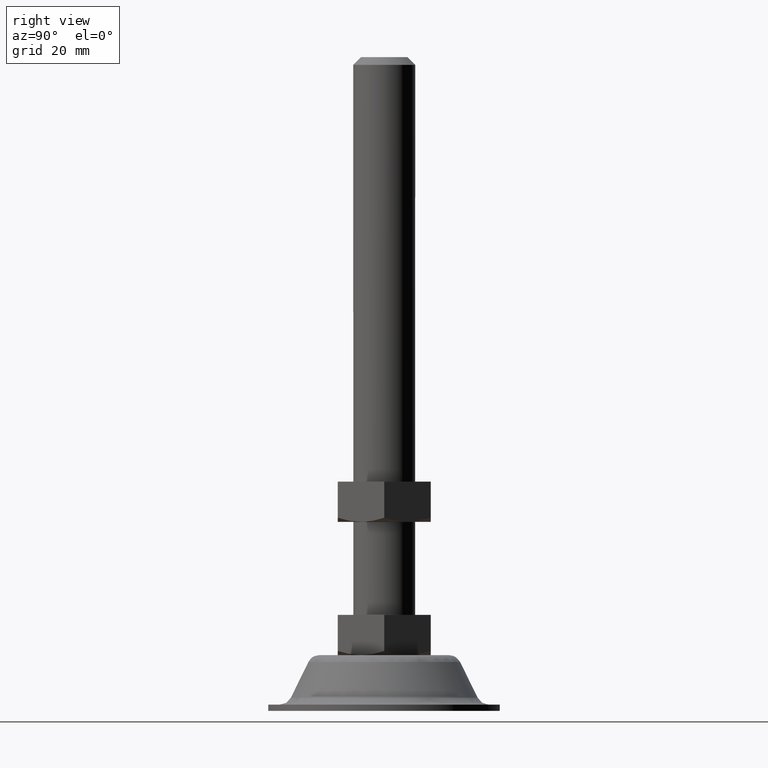
[diagram: clean part render]
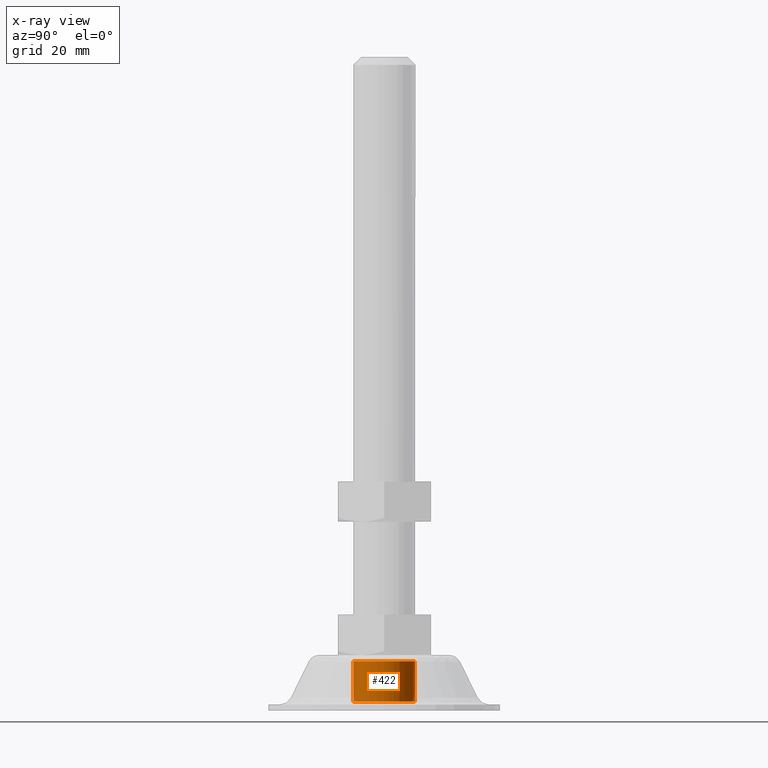
[diagram: x-ray — body ghosted, one internal face saturated and labeled with its STEP entity id]
A machine part, right view, then the same camera in x-ray: the body is ghosted and one INTERNAL B-rep face — a face not visible from any outside direction — is saturated and labeled: STEP entity #422.
In plain terms, the highlighted face is a freeform B-spline surface patch.
Its self-contained STEP definition (entity closure, byte-faithful):
#324=CARTESIAN_POINT('',(-0.784590957278455,-9.969173337331275,74.325000000000017));
#325=CARTESIAN_POINT('',(-10.753764294609731,-9.184582380052820,74.325000000000017));
#326=CARTESIAN_POINT('',(-9.969173337331275,0.784590957278455,74.325000000000017));
#327=CARTESIAN_POINT('',(-9.184582380052820,10.753764294609731,74.325000000000017));
#328=CARTESIAN_POINT('',(0.784590957278455,9.969173337331275,74.325000000000017));
#329=CARTESIAN_POINT('',(-0.784590957278455,-9.969173337331275,60.666874999999990));
#330=CARTESIAN_POINT('',(-10.753764294609731,-9.184582380052820,60.666874999999990));
#331=CARTESIAN_POINT('',(-9.969173337331275,0.784590957278455,60.666874999999990));
#332=CARTESIAN_POINT('',(-9.184582380052820,10.753764294609731,60.666874999999990));
#333=CARTESIAN_POINT('',(0.784590957278455,9.969173337331275,60.666874999999990));
#341=(BOUNDED_SURFACE()B_SPLINE_SURFACE(2,1,((#324,#329),(#325,#330),(#326,#331),(#327,#332),(#328,#333)),.UNSPECIFIED.,.F.,.F.,.U.)B_SPLINE_SURFACE_WITH_KNOTS((3,2,3),(2,2),(0.0,16.568542494923800,33.137084989847587),(0.0,13.658125000000030),.UNSPECIFIED.)GEOMETRIC_REPRESENTATION_ITEM()RATIONAL_B_SPLINE_SURFACE(((1.0,1.0),(0.707106781186548,0.707106781186548),(1.0,1.0),(0.707106781186548,0.707106781186548),(1.0,1.0)))REPRESENTATION_ITEM('')SURFACE());
#342=CARTESIAN_POINT('',(-10.0,0.0,74.0));
#343=VERTEX_POINT('',#342);
#344=CARTESIAN_POINT('',(-0.784590957487143,-9.969173337314853,74.0));
#345=VERTEX_POINT('',#344);
#346=CARTESIAN_POINT('',(-10.0,0.0,74.0));
#347=CARTESIAN_POINT('',(-10.000000000000002,-9.243904916193854,74.000000000000014));
#348=CARTESIAN_POINT('',(-0.784590957487143,-9.969173337314853,74.0));
#356=(BOUNDED_CURVE()B_SPLINE_CURVE(2,(#346,#347,#348),.UNSPECIFIED.,.F.,.U.)B_SPLINE_CURVE_WITH_KNOTS((3,3),(0.0,0.236331300625590),.UNSPECIFIED.)CURVE()GEOMETRIC_REPRESENTATION_ITEM()RATIONAL_B_SPLINE_CURVE((1.0,0.723120658613605,0.969723356156837))REPRESENTATION_ITEM(''));
#357=EDGE_CURVE('',#343,#345,#356,.T.);
#358=ORIENTED_EDGE('',*,*,#357,.T.);
#359=CARTESIAN_POINT('',(-0.784590957487142,-9.969173337314853,61.0));
#360=VERTEX_POINT('',#359);
#361=CARTESIAN_POINT('',(-0.784590957487143,-9.969173337314853,74.0));
#362=CARTESIAN_POINT('',(-0.784590957487142,-9.969173337314853,61.0));
#363=QUASI_UNIFORM_CURVE('',1,(#361,#362),.UNSPECIFIED.,.F.,.U.);
#364=EDGE_CURVE('',#345,#360,#363,.T.);
#365=ORIENTED_EDGE('',*,*,#364,.T.);
#366=CARTESIAN_POINT('',(-10.0,0.0,61.0));
#367=VERTEX_POINT('',#366);
#368=CARTESIAN_POINT('',(-10.0,0.0,61.0));
#369=CARTESIAN_POINT('',(-10.000000000000002,-9.243904916193854,60.999999999999993));
#370=CARTESIAN_POINT('',(-0.784590957487142,-9.969173337314853,61.0));
#378=(BOUNDED_CURVE()B_SPLINE_CURVE(2,(#368,#369,#370),.UNSPECIFIED.,.F.,.U.)B_SPLINE_CURVE_WITH_KNOTS((3,3),(0.0,0.236331300625590),.UNSPECIFIED.)CURVE()GEOMETRIC_REPRESENTATION_ITEM()RATIONAL_B_SPLINE_CURVE((1.0,0.723120658613605,0.969723356156837))REPRESENTATION_ITEM(''));
#379=EDGE_CURVE('',#367,#360,#378,.T.);
#380=ORIENTED_EDGE('',*,*,#379,.F.);
#381=CARTESIAN_POINT('',(0.784590957487143,9.969173337314853,61.0));
#382=VERTEX_POINT('',#381);
#383=CARTESIAN_POINT('',(0.784590957487143,9.969173337314853,60.999999999999993));
#384=CARTESIAN_POINT('',(0.392901070286356,10.000000000000002,61.0));
#385=CARTESIAN_POINT('',(0.0,10.0,61.0));
#386=CARTESIAN_POINT('',(-10.000000000000002,10.000000000000002,60.999999999999993));
#387=CARTESIAN_POINT('',(-10.0,0.0,61.0));
#395=(BOUNDED_CURVE()B_SPLINE_CURVE(2,(#383,#384,#385,#386,#387),.UNSPECIFIED.,.F.,.U.)B_SPLINE_CURVE_WITH_KNOTS((3,2,3),(0.736331300625590,0.750000000000000,1.0),.UNSPECIFIED.)CURVE()GEOMETRIC_REPRESENTATION_ITEM()RATIONAL_B_SPLINE_CURVE((0.969723356156837,0.983986122572942,1.0,0.707106781186548,1.0))REPRESENTATION_ITEM(''));
#396=EDGE_CURVE('',#382,#367,#395,.T.);
#397=ORIENTED_EDGE('',*,*,#396,.F.);
#398=CARTESIAN_POINT('',(0.784590957487143,9.969173337314853,74.0));
#399=VERTEX_POINT('',#398);
#400=CARTESIAN_POINT('',(0.784590957487143,9.969173337314853,74.0));
#401=CARTESIAN_POINT('',(0.784590957487143,9.969173337314853,61.0));
#402=QUASI_UNIFORM_CURVE('',1,(#400,#401),.UNSPECIFIED.,.F.,.U.);
#403=EDGE_CURVE('',#399,#382,#402,.T.);
#404=ORIENTED_EDGE('',*,*,#403,.F.);
#405=CARTESIAN_POINT('',(0.784590957487143,9.969173337314853,73.999999999999986));
#406=CARTESIAN_POINT('',(0.392901070286356,10.000000000000002,74.0));
#407=CARTESIAN_POINT('',(0.0,10.0,74.0));
#408=CARTESIAN_POINT('',(-10.000000000000002,10.000000000000002,74.0));
#409=CARTESIAN_POINT('',(-10.0,0.0,74.0));
#417=(BOUNDED_CURVE()B_SPLINE_CURVE(2,(#405,#406,#407,#408,#409),.UNSPECIFIED.,.F.,.U.)B_SPLINE_CURVE_WITH_KNOTS((3,2,3),(0.736331300625590,0.750000000000000,1.0),.UNSPECIFIED.)CURVE()GEOMETRIC_REPRESENTATION_ITEM()RATIONAL_B_SPLINE_CURVE((0.969723356156837,0.983986122572942,1.0,0.707106781186548,1.0))REPRESENTATION_ITEM(''));
#418=EDGE_CURVE('',#399,#343,#417,.T.);
#419=ORIENTED_EDGE('',*,*,#418,.T.);
#420=EDGE_LOOP('',(#358,#365,#380,#397,#404,#419));
#421=FACE_OUTER_BOUND('',#420,.T.);
#422=ADVANCED_FACE('',(#421),#341,.F.);